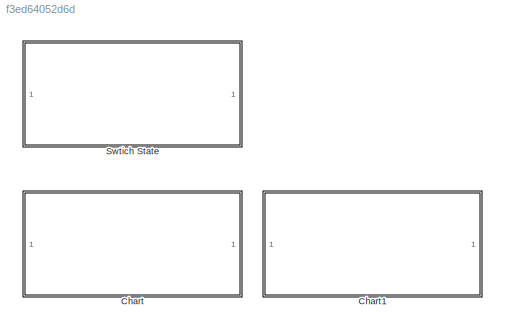
MODEL slx_f3ed64052d6d
KIND model
CONFIG AbsTol = auto
CONFIG EnableMultiTasking = off
CONFIG FixedStep = auto
CONFIG MaxStep = auto
CONFIG MinStep = auto
CONFIG RelTol = 1e-3
CONFIG SampleTimeConstraint = Unconstrained
CONFIG Solver = FixedStepDiscrete
CONFIG SolverName = FixedStepDiscrete
CONFIG StartTime = 0.0
CONFIG StopTime = 10.0
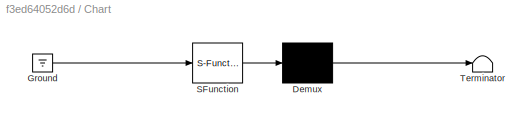
BLOCK [SubSystem] Chart
  Commented = on
  ErrorFcn = Stateflow.Translate.translate
  PermitHierarchicalResolution = ExplicitOnly
  Ports = []
  RequestExecContextInheritance = off
  SFBlockType = Chart
  TreatAsAtomicUnit = on
BLOCK [Demux] Chart/ Demux 
  Outputs = 1
  Ports = [1, 1]
BLOCK [Ground] Chart/ Ground 
BLOCK [S-Function] Chart/ SFunction 
  EnableBusSupport = on
  FunctionName = sf_sfun
  PortCounts = [1 1]
  Ports = [1, 1]
  SFcnIsStateOwnerBlock = off
  SFunctionDeploymentMode = off
  Tag = Stateflow S-Function Alarm_System 2
BLOCK [Terminator] Chart/ Terminator 
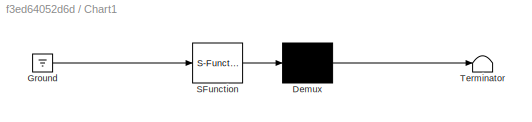
BLOCK [SubSystem] Chart1
  ErrorFcn = Stateflow.Translate.translate
  PermitHierarchicalResolution = ExplicitOnly
  Ports = []
  RequestExecContextInheritance = off
  SFBlockType = Chart
  TreatAsAtomicUnit = on
BLOCK [Demux] Chart1/ Demux 
  Outputs = 1
  Ports = [1, 1]
BLOCK [Ground] Chart1/ Ground 
BLOCK [S-Function] Chart1/ SFunction 
  EnableBusSupport = on
  FunctionName = sf_sfun
  PortCounts = [1 1]
  Ports = [1, 1]
  SFcnIsStateOwnerBlock = off
  SFunctionDeploymentMode = off
  Tag = Stateflow S-Function Alarm_System 3
BLOCK [Terminator] Chart1/ Terminator 
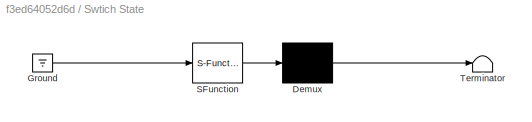
BLOCK [SubSystem] Swtich State
  ErrorFcn = Stateflow.Translate.translate
  PermitHierarchicalResolution = ExplicitOnly
  Ports = []
  RequestExecContextInheritance = off
  SFBlockType = Chart
  TreatAsAtomicUnit = on
BLOCK [Demux] Swtich State/ Demux 
  Outputs = 1
  Ports = [1, 1]
BLOCK [Ground] Swtich State/ Ground 
BLOCK [S-Function] Swtich State/ SFunction 
  EnableBusSupport = on
  FunctionName = sf_sfun
  PortCounts = [1 1]
  Ports = [1, 1]
  SFcnIsStateOwnerBlock = off
  SFunctionDeploymentMode = off
  Tag = Stateflow S-Function Alarm_System 1
BLOCK [Terminator] Swtich State/ Terminator 
CHART Swtich State states=0 transitions=6
CHART Chart states=2 transitions=8
  STATE_LABEL 'Read_Temp\n\nen:\n\nAnalog_Value=ADC_Read(ADC_CHANNEL);\nDigital_Value = Analog_Value * 5000 / 1024;\nTemperature = Digital_Value / 10;\n\ndu:\n\nex:'
  STATE_LABEL 'Alarm\n\n'
  STATE_LABEL '[Temperature>=80]'
  STATE_LABEL '{BuzzerOff();\nLed_TurnOff(LED_RED);}'
  STATE_LABEL '{BuzzerOn(); \nLed_TurnOn(LED_RED);}'
CHART Chart1 states=1 transitions=7
  STATE_LABEL 'Read_Temp\n\nen:\n\nAnalog_Value=ADC_Read(ADC_CHANNEL);\nDigital_Value = Analog_Value * 5000 / 1024;\nTemperature = Digital_Value / 10;\n\ndu:\n\nex:'
